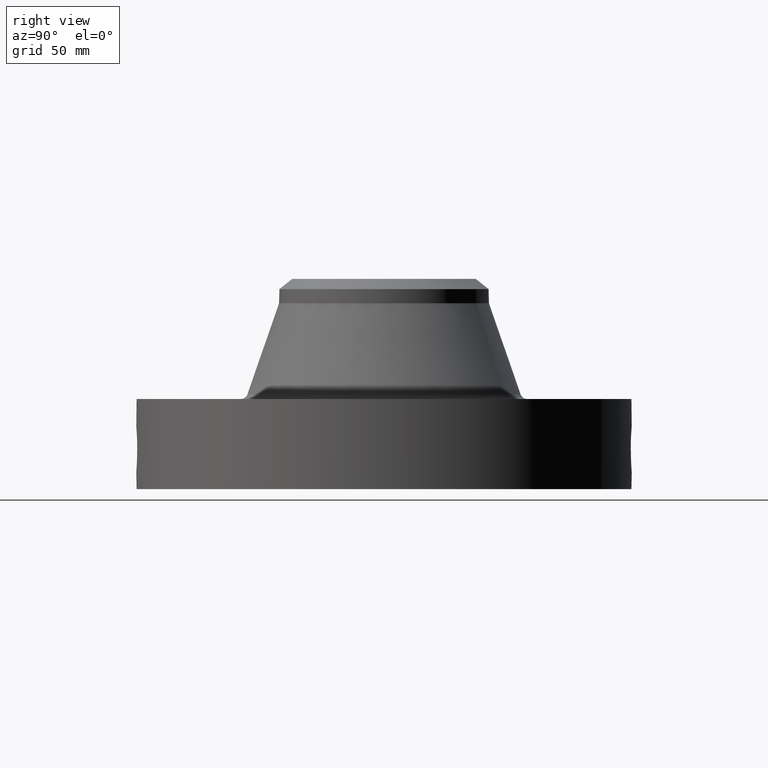
[diagram: clean part render]
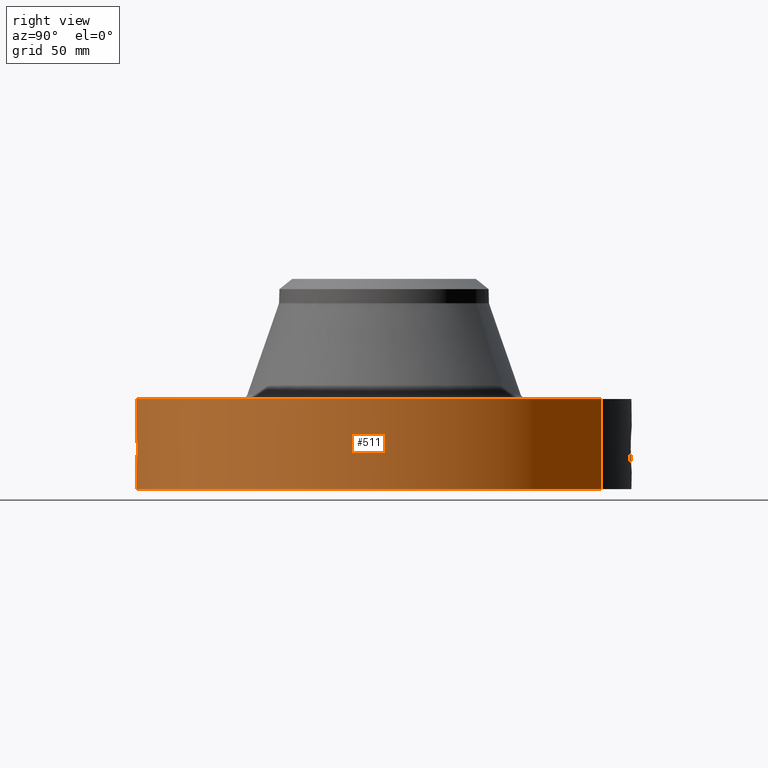
[diagram: same view with one face highlighted and labeled with its STEP entity id]
A machine part, right view. The second image highlights one B-rep face of the part: STEP entity #511.
In plain terms, the highlighted cylindrical surface (partial cylindrical patch) has radius 104.775 mm, axis along (0, 0, -1).
Its self-contained STEP definition (entity closure, byte-faithful):
#38=AXIS2_PLACEMENT_3D('Cylinder Axis2P3D',#35,#36,#37) ;
#197=AXIS2_PLACEMENT_3D('Circle Axis2P3D',#195,#196,$) ;
#387=AXIS2_PLACEMENT_3D('Circle Axis2P3D',#385,#386,$) ;
#35=CARTESIAN_POINT('Axis2P3D Location',(0.,0.,2.00000000001)) ;
#44=CARTESIAN_POINT('Vertex',(-1.97763034675,-3.62002806781,0.250000000001)) ;
#46=CARTESIAN_POINT('Vertex',(1.97763034675,3.62002806781,0.250000000001)) ;
#49=CARTESIAN_POINT('Line Origine',(-1.97763034675,-3.62002806781,1.)) ;
#53=CARTESIAN_POINT('Vertex',(-1.97763034675,-3.62002806781,1.75000000001)) ;
#60=CARTESIAN_POINT('Vertex',(1.97763034675,3.62002806781,1.75000000001)) ;
#63=CARTESIAN_POINT('Line Origine',(1.97763034675,3.62002806781,1.)) ;
#195=CARTESIAN_POINT('Axis2P3D Location',(0.,0.,0.250000000001)) ;
#385=CARTESIAN_POINT('Axis2P3D Location',(0.,0.,1.75000000001)) ;
#397=CARTESIAN_POINT('Control Point',(0.0708258696509,-4.12439191837,1.28694445408)) ;
#398=CARTESIAN_POINT('Control Point',(0.0477756042591,-4.12478774765,1.29166264764)) ;
#399=CARTESIAN_POINT('Control Point',(0.0242493397436,-4.12499584526,1.29407066085)) ;
#400=CARTESIAN_POINT('Control Point',(0.000717367785523,-4.12499993764,1.29411849621)) ;
#401=CARTESIAN_POINT('Vertex',(0.0707931255285,-4.12439274845,1.28695147494)) ;
#403=CARTESIAN_POINT('Vertex',(0.00071711567586,-4.12499993768,1.29411850626)) ;
#407=CARTESIAN_POINT('Control Point',(0.0707929875436,-4.12439248291,1.28695080973)) ;
#408=CARTESIAN_POINT('Control Point',(0.105534403897,-4.12379616511,1.28076532583)) ;
#409=CARTESIAN_POINT('Control Point',(0.139240729959,-4.12276500955,1.26858978299)) ;
#410=CARTESIAN_POINT('Control Point',(0.170106274733,-4.12149109612,1.25141106894)) ;
#411=CARTESIAN_POINT('Vertex',(0.170106274733,-4.12149109612,1.25141106894)) ;
#415=CARTESIAN_POINT('Control Point',(0.170106274733,-4.12149109612,1.25141106894)) ;
#416=CARTESIAN_POINT('Control Point',(0.189944744256,-4.1206723031,1.24036965022)) ;
#417=CARTESIAN_POINT('Control Point',(0.208623588127,-4.11975702947,1.22728178951)) ;
#418=CARTESIAN_POINT('Control Point',(0.225825151081,-4.11881390709,1.21251850282)) ;
#419=CARTESIAN_POINT('Vertex',(0.225825362099,-4.11881409519,1.21251874593)) ;
#423=CARTESIAN_POINT('Control Point',(0.351866700326,-4.10996530707,0.975464361167)) ;
#424=CARTESIAN_POINT('Control Point',(0.3449788673,-4.11055499552,1.0439862787)) ;
#425=CARTESIAN_POINT('Control Point',(0.320314482868,-4.11268399222,1.11077407827)) ;
#426=CARTESIAN_POINT('Control Point',(0.278761447424,-4.1159117292,1.16853984638)) ;
#427=CARTESIAN_POINT('Control Point',(0.225809776385,-4.11881475003,1.21253161272)) ;
#428=CARTESIAN_POINT('Vertex',(0.351866537775,-4.10996536585,0.975466055539)) ;
#432=CARTESIAN_POINT('Control Point',(0.0285867200519,-4.12490094421,0.531014415425)) ;
#433=CARTESIAN_POINT('Control Point',(0.0731508323971,-4.12459210242,0.53676262059)) ;
#434=CARTESIAN_POINT('Control Point',(0.116605911806,-4.12368909709,0.54961040193)) ;
#435=CARTESIAN_POINT('Control Point',(0.157313656181,-4.12226228881,0.569187265494)) ;
#436=CARTESIAN_POINT('Control Point',(0.218412033149,-4.11943105988,0.610865799678)) ;
#437=CARTESIAN_POINT('Control Point',(0.267085984173,-4.11640755897,0.664664117651)) ;
#438=CARTESIAN_POINT('Control Point',(0.284316422769,-4.11523449191,0.687667885473)) ;
#439=CARTESIAN_POINT('Control Point',(0.325710071669,-4.11223072828,0.754664964776)) ;
#440=CARTESIAN_POINT('Control Point',(0.349728178369,-4.11016858959,0.829194136428)) ;
#441=CARTESIAN_POINT('Control Point',(0.357709929823,-4.10945203007,0.878220924917)) ;
#442=CARTESIAN_POINT('Control Point',(0.358385651064,-4.10940720015,0.927417505244)) ;
#443=CARTESIAN_POINT('Control Point',(0.351866458174,-4.1099653278,0.975466036918)) ;
#444=CARTESIAN_POINT('Vertex',(0.0285867200519,-4.12490094421,0.531014415425)) ;
#448=CARTESIAN_POINT('Control Point',(0.0285867200519,-4.12490094421,0.531014415425)) ;
#449=CARTESIAN_POINT('Control Point',(0.0190504033792,-4.12496703356,0.530850653595)) ;
#450=CARTESIAN_POINT('Control Point',(0.00951371795879,-4.12500000631,0.530970811253)) ;
#451=CARTESIAN_POINT('Control Point',(-2.72878354221E-006,-4.12500000002,0.531374667805)) ;
#452=CARTESIAN_POINT('Vertex',(-2.72878353897E-006,-4.12500000002,0.531374667805)) ;
#456=CARTESIAN_POINT('Control Point',(-0.195057006855,-4.12038563295,0.582957545943)) ;
#457=CARTESIAN_POINT('Control Point',(-0.134929810894,-4.12323202451,0.551663787967)) ;
#458=CARTESIAN_POINT('Control Point',(-0.0678695334311,-4.12499995512,0.534254782757)) ;
#459=CARTESIAN_POINT('Control Point',(-2.72878353854E-006,-4.12500000002,0.531374667805)) ;
#460=CARTESIAN_POINT('Vertex',(-0.195057006855,-4.12038563295,0.582957545943)) ;
#464=CARTESIAN_POINT('Control Point',(-0.277741653318,-4.11563902379,0.638820641839)) ;
#465=CARTESIAN_POINT('Control Point',(-0.252440207964,-4.11734647802,0.61703728036)) ;
#466=CARTESIAN_POINT('Control Point',(-0.224590631531,-4.11898752584,0.59832859493)) ;
#467=CARTESIAN_POINT('Control Point',(-0.195057006855,-4.12038563295,0.582957545943)) ;
#468=CARTESIAN_POINT('Vertex',(-0.277741653318,-4.11563902379,0.638820641839)) ;
#472=CARTESIAN_POINT('Control Point',(-0.277741653318,-4.11563902379,0.638820641839)) ;
#473=CARTESIAN_POINT('Control Point',(-0.346084614524,-4.11102693635,0.706500366903)) ;
#474=CARTESIAN_POINT('Control Point',(-0.392503228734,-4.1063284801,0.7951672857)) ;
#475=CARTESIAN_POINT('Control Point',(-0.412343746851,-4.10434301328,0.891847251892)) ;
#476=CARTESIAN_POINT('Control Point',(-0.406546637881,-4.1049171528,0.98790255717)) ;
#477=CARTESIAN_POINT('Vertex',(-0.406546637881,-4.1049171528,0.98790255717)) ;
#481=CARTESIAN_POINT('Control Point',(-0.406546637881,-4.1049171528,0.98790255717)) ;
#482=CARTESIAN_POINT('Control Point',(-0.39669630803,-4.10589271901,1.03992594033)) ;
#483=CARTESIAN_POINT('Control Point',(-0.37710779109,-4.10780290855,1.08979808973)) ;
#484=CARTESIAN_POINT('Control Point',(-0.348680840748,-4.11043683845,1.13488020746)) ;
#485=CARTESIAN_POINT('Control Point',(-0.272595100944,-4.11655133167,1.21936561238)) ;
#486=CARTESIAN_POINT('Control Point',(-0.173676685766,-4.1218983007,1.27163748858)) ;
#487=CARTESIAN_POINT('Control Point',(-0.11649659812,-4.12398624661,1.28950778802)) ;
#488=CARTESIAN_POINT('Control Point',(-0.0578342871667,-4.12500036264,1.29698939342)) ;
#489=CARTESIAN_POINT('Control Point',(2.58579355097E-005,-4.12499999994,1.29415298439)) ;
#490=CARTESIAN_POINT('Vertex',(2.58579355095E-005,-4.12499999994,1.29415298439)) ;
#494=CARTESIAN_POINT('Control Point',(0.000717115663548,-4.12499993768,1.29411850625)) ;
#495=CARTESIAN_POINT('Control Point',(0.000371509656305,-4.12499999777,1.29413603992)) ;
#496=CARTESIAN_POINT('Control Point',(2.585794392E-005,-4.12499999994,1.29415298439)) ;
#36=DIRECTION('Axis2P3D Direction',(0.,0.,-0.0393700787402)) ;
#37=DIRECTION('Axis2P3D XDirection',(0.0188750212049,0.0345504945626,0.)) ;
#50=DIRECTION('Vector Direction',(0.,0.,-0.0393700787402)) ;
#64=DIRECTION('Vector Direction',(0.,0.,-0.0393700787402)) ;
#196=DIRECTION('Axis2P3D Direction',(0.,0.,-0.0393700787402)) ;
#386=DIRECTION('Axis2P3D Direction',(0.,0.,-0.0393700787402)) ;
#51=VECTOR('Line Direction',#50,0.0393700787402) ;
#65=VECTOR('Line Direction',#64,0.0393700787402) ;
#391=ORIENTED_EDGE('',*,*,#199,.F.) ;
#392=ORIENTED_EDGE('',*,*,#67,.T.) ;
#393=ORIENTED_EDGE('',*,*,#389,.T.) ;
#394=ORIENTED_EDGE('',*,*,#55,.F.) ;
#499=ORIENTED_EDGE('',*,*,#405,.F.) ;
#500=ORIENTED_EDGE('',*,*,#413,.T.) ;
#501=ORIENTED_EDGE('',*,*,#421,.T.) ;
#502=ORIENTED_EDGE('',*,*,#430,.F.) ;
#503=ORIENTED_EDGE('',*,*,#446,.F.) ;
#504=ORIENTED_EDGE('',*,*,#454,.T.) ;
#505=ORIENTED_EDGE('',*,*,#462,.F.) ;
#506=ORIENTED_EDGE('',*,*,#470,.F.) ;
#507=ORIENTED_EDGE('',*,*,#479,.T.) ;
#508=ORIENTED_EDGE('',*,*,#492,.T.) ;
#509=ORIENTED_EDGE('',*,*,#497,.F.) ;
#510=FACE_BOUND('',#498,.T.) ;
#511=ADVANCED_FACE('PartBody',(#395,#510),#39,.T.) ;
#396=B_SPLINE_CURVE_WITH_KNOTS('',3,(#397,#398,#399,#400),.UNSPECIFIED.,.F.,.U.,(4,4),(3.9117475372,6.52241187092),.UNSPECIFIED.) ;
#406=B_SPLINE_CURVE_WITH_KNOTS('',3,(#407,#408,#409,#410),.UNSPECIFIED.,.F.,.U.,(4,4),(0.,3.96493926536),.UNSPECIFIED.) ;
#414=B_SPLINE_CURVE_WITH_KNOTS('',3,(#415,#416,#417,#418),.UNSPECIFIED.,.F.,.U.,(4,4),(0.,2.54841856442),.UNSPECIFIED.) ;
#422=B_SPLINE_CURVE_WITH_KNOTS('',4,(#423,#424,#425,#426,#427),.UNSPECIFIED.,.F.,.U.,(5,5),(14.8279676937,25.0223849801),.UNSPECIFIED.) ;
#431=B_SPLINE_CURVE_WITH_KNOTS('',5,(#432,#433,#434,#435,#436,#437,#438,#439,#440,#441,#442,#443),.UNSPECIFIED.,.F.,.U.,(6,3,3,6),(0.,7.80985906695,12.9724794097,22.0575185797),.UNSPECIFIED.) ;
#447=B_SPLINE_CURVE_WITH_KNOTS('',3,(#448,#449,#450,#451),.UNSPECIFIED.,.F.,.U.,(4,4),(0.,0.994579949519),.UNSPECIFIED.) ;
#455=B_SPLINE_CURVE_WITH_KNOTS('',3,(#456,#457,#458,#459),.UNSPECIFIED.,.F.,.U.,(4,4),(0.,7.0928745794),.UNSPECIFIED.) ;
#463=B_SPLINE_CURVE_WITH_KNOTS('',3,(#464,#465,#466,#467),.UNSPECIFIED.,.F.,.U.,(4,4),(0.,3.48391923029),.UNSPECIFIED.) ;
#471=B_SPLINE_CURVE_WITH_KNOTS('',4,(#472,#473,#474,#475,#476),.UNSPECIFIED.,.F.,.U.,(5,5),(0.,13.3803771448),.UNSPECIFIED.) ;
#480=B_SPLINE_CURVE_WITH_KNOTS('',5,(#481,#482,#483,#484,#485,#486,#487,#488,#489),.UNSPECIFIED.,.F.,.U.,(6,3,6),(0.,9.20582229267,20.0210803142),.UNSPECIFIED.) ;
#493=B_SPLINE_CURVE_WITH_KNOTS('',2,(#494,#495,#496),.UNSPECIFIED.,.F.,.U.,(3,3),(1.12444292039,1.15028670438),.UNSPECIFIED.) ;
#198=CIRCLE('generated circle',#197,4.12500000002) ;
#388=CIRCLE('generated circle',#387,4.12500000002) ;
#39=CYLINDRICAL_SURFACE('generated cylinder',#38,4.12500000002) ;
#55=EDGE_CURVE('',#45,#54,#52,.F.) ;
#67=EDGE_CURVE('',#47,#61,#66,.F.) ;
#199=EDGE_CURVE('',#47,#45,#198,.T.) ;
#389=EDGE_CURVE('',#61,#54,#388,.T.) ;
#405=EDGE_CURVE('',#402,#404,#396,.T.) ;
#413=EDGE_CURVE('',#402,#412,#406,.T.) ;
#421=EDGE_CURVE('',#412,#420,#414,.T.) ;
#430=EDGE_CURVE('',#429,#420,#422,.T.) ;
#446=EDGE_CURVE('',#445,#429,#431,.T.) ;
#454=EDGE_CURVE('',#445,#453,#447,.T.) ;
#462=EDGE_CURVE('',#461,#453,#455,.T.) ;
#470=EDGE_CURVE('',#469,#461,#463,.T.) ;
#479=EDGE_CURVE('',#469,#478,#471,.T.) ;
#492=EDGE_CURVE('',#478,#491,#480,.T.) ;
#497=EDGE_CURVE('',#404,#491,#493,.T.) ;
#390=EDGE_LOOP('',(#391,#392,#393,#394)) ;
#498=EDGE_LOOP('',(#499,#500,#501,#502,#503,#504,#505,#506,#507,#508,#509)) ;
#395=FACE_OUTER_BOUND('',#390,.T.) ;
#52=LINE('Line',#49,#51) ;
#66=LINE('Line',#63,#65) ;
#45=VERTEX_POINT('',#44) ;
#47=VERTEX_POINT('',#46) ;
#54=VERTEX_POINT('',#53) ;
#61=VERTEX_POINT('',#60) ;
#402=VERTEX_POINT('',#401) ;
#404=VERTEX_POINT('',#403) ;
#412=VERTEX_POINT('',#411) ;
#420=VERTEX_POINT('',#419) ;
#429=VERTEX_POINT('',#428) ;
#445=VERTEX_POINT('',#444) ;
#453=VERTEX_POINT('',#452) ;
#461=VERTEX_POINT('',#460) ;
#469=VERTEX_POINT('',#468) ;
#478=VERTEX_POINT('',#477) ;
#491=VERTEX_POINT('',#490) ;